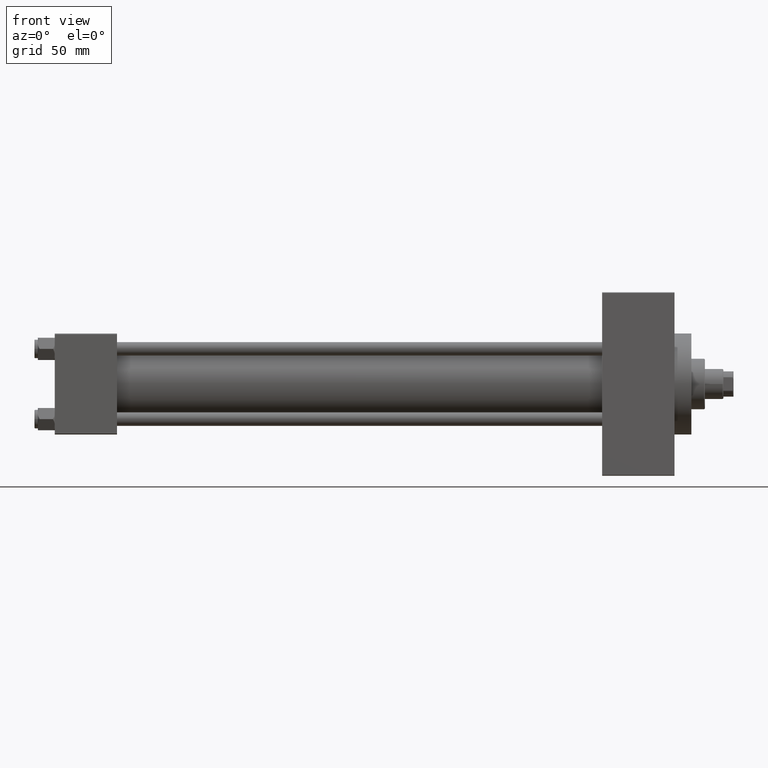
[diagram: clean part render]
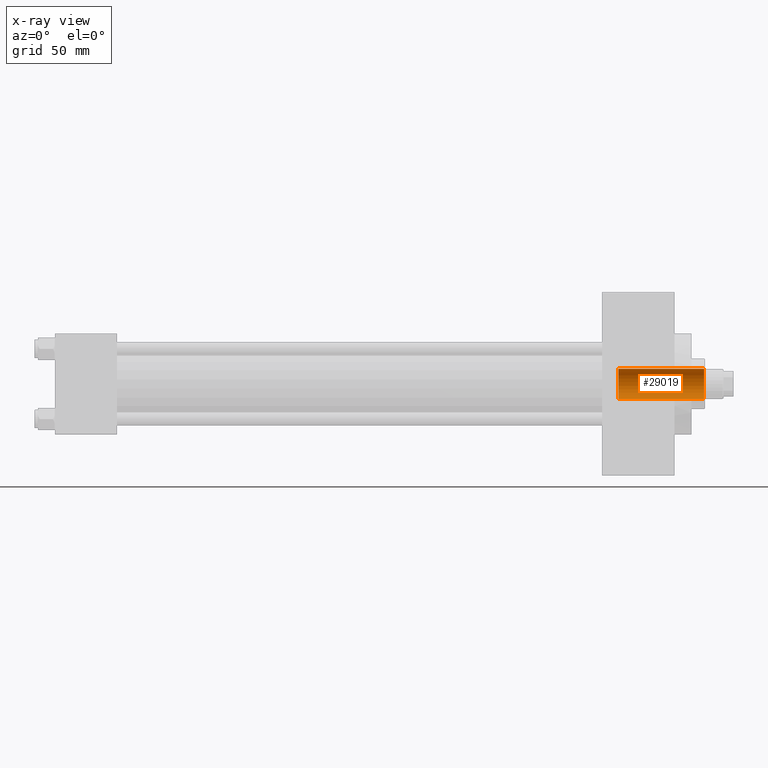
[diagram: x-ray — body ghosted, one internal face saturated and labeled with its STEP entity id]
A machine part, front view, then the same camera in x-ray: the body is ghosted and one INTERNAL B-rep face — a face not visible from any outside direction — is saturated and labeled: STEP entity #29019.
In plain terms, the highlighted cylindrical surface (edge-blend (fillet) strip) has radius 9 mm, axis along (1, -0, -0).
Its self-contained STEP definition (entity closure, byte-faithful):
#646 = VECTOR ( 'NONE', #19457, 1000.000000000000000 ) ;
#888 = CARTESIAN_POINT ( 'NONE',  ( -9.000000000000000000, 1.102182119232617714E-15, 0.000000000000000000 ) ) ;
#1101 = DIRECTION ( 'NONE',  ( 1.000000000000000000, 0.000000000000000000, 0.000000000000000000 ) ) ;
#1663 = DIRECTION ( 'NONE',  ( 1.000000000000000000, 0.000000000000000000, 0.000000000000000000 ) ) ;
#7259 = EDGE_CURVE ( 'NONE', #9068, #25976, #25419, .T. ) ;
#7508 = DIRECTION ( 'NONE',  ( 1.000000000000000000, 0.000000000000000000, 0.000000000000000000 ) ) ;
#8554 = DIRECTION ( 'NONE',  ( -0.000000000000000000, -0.000000000000000000, -1.000000000000000000 ) ) ;
#9068 = VERTEX_POINT ( 'NONE', #34867 ) ;
#9362 = DIRECTION ( 'NONE',  ( -0.000000000000000000, -0.000000000000000000, 1.000000000000000000 ) ) ;
#13358 = DIRECTION ( 'NONE',  ( -0.000000000000000000, -0.000000000000000000, 1.000000000000000000 ) ) ;
#18677 = EDGE_CURVE ( 'NONE', #45682, #32995, #40711, .T. ) ;
#19457 = DIRECTION ( 'NONE',  ( -0.000000000000000000, -0.000000000000000000, 1.000000000000000000 ) ) ;
#23046 = EDGE_CURVE ( 'NONE', #9068, #45682, #38559, .T. ) ;
#25419 = CIRCLE ( 'NONE', #41289, 9.000000000000000000 ) ;
#25976 = VERTEX_POINT ( 'NONE', #888 ) ;
#28760 = FACE_OUTER_BOUND ( 'NONE', #29800, .T. ) ;
#29019 = ADVANCED_FACE ( 'NONE', ( #28760 ), #31739, .F. ) ;
#29752 = CARTESIAN_POINT ( 'NONE',  ( -9.000000000000000000, 1.102182119232617714E-15, 50.75999999999999801 ) ) ;
#29800 = EDGE_LOOP ( 'NONE', ( #46568, #46904, #38456, #46203 ) ) ;
#30130 = DIRECTION ( 'NONE',  ( -0.000000000000000000, -0.000000000000000000, -1.000000000000000000 ) ) ;
#30385 = CARTESIAN_POINT ( 'NONE',  ( 9.000000000000000000, 0.000000000000000000, -25.45584412271570329 ) ) ;
#31739 = CYLINDRICAL_SURFACE ( 'NONE', #48144, 9.000000000000000000 ) ;
#32003 = CARTESIAN_POINT ( 'NONE',  ( -9.000000000000000000, 1.102182119232617714E-15, -25.45584412271570329 ) ) ;
#32995 = VERTEX_POINT ( 'NONE', #29752 ) ;
#34867 = CARTESIAN_POINT ( 'NONE',  ( 9.000000000000000000, 0.000000000000000000, 0.000000000000000000 ) ) ;
#35726 = LINE ( 'NONE', #32003, #42318 ) ;
#38456 = ORIENTED_EDGE ( 'NONE', *, *, #18677, .F. ) ;
#38559 = LINE ( 'NONE', #30385, #646 ) ;
#39140 = AXIS2_PLACEMENT_3D ( 'NONE', #49023, #30130, #7508 ) ;
#39434 = CARTESIAN_POINT ( 'NONE',  ( 0.000000000000000000, 0.000000000000000000, -25.45584412271570329 ) ) ;
#40711 = CIRCLE ( 'NONE', #39140, 9.000000000000000000 ) ;
#41289 = AXIS2_PLACEMENT_3D ( 'NONE', #42620, #8554, #1101 ) ;
#41437 = CARTESIAN_POINT ( 'NONE',  ( 9.000000000000000000, 0.000000000000000000, 50.75999999999999801 ) ) ;
#42318 = VECTOR ( 'NONE', #13358, 1000.000000000000000 ) ;
#42620 = CARTESIAN_POINT ( 'NONE',  ( 0.000000000000000000, 0.000000000000000000, 0.000000000000000000 ) ) ;
#45682 = VERTEX_POINT ( 'NONE', #41437 ) ;
#46203 = ORIENTED_EDGE ( 'NONE', *, *, #23046, .F. ) ;
#46568 = ORIENTED_EDGE ( 'NONE', *, *, #7259, .T. ) ;
#46819 = EDGE_CURVE ( 'NONE', #25976, #32995, #35726, .T. ) ;
#46904 = ORIENTED_EDGE ( 'NONE', *, *, #46819, .T. ) ;
#48144 = AXIS2_PLACEMENT_3D ( 'NONE', #39434, #9362, #1663 ) ;
#49023 = CARTESIAN_POINT ( 'NONE',  ( 0.000000000000000000, 0.000000000000000000, 50.75999999999999801 ) ) ;